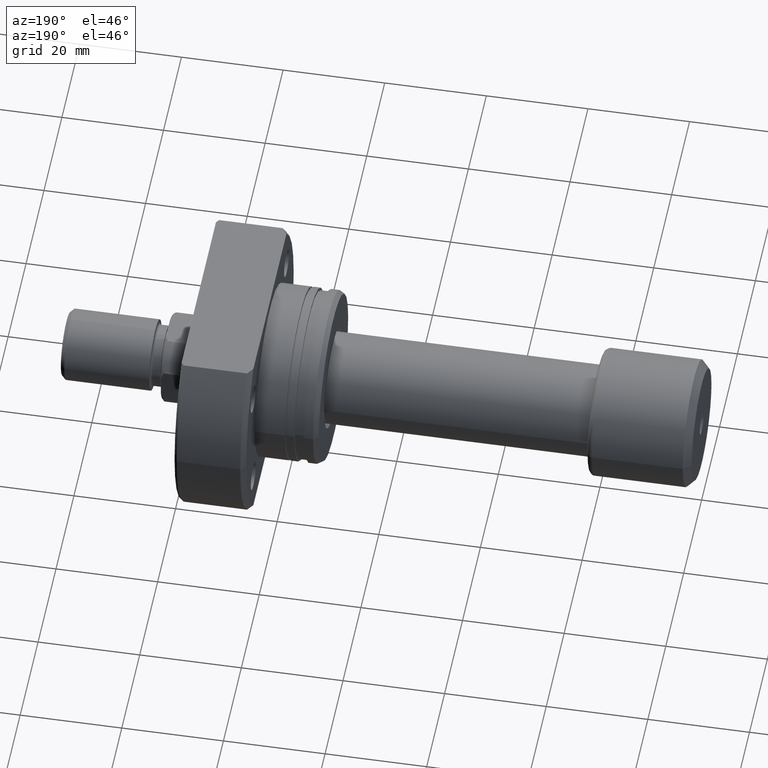
[diagram: clean part render]
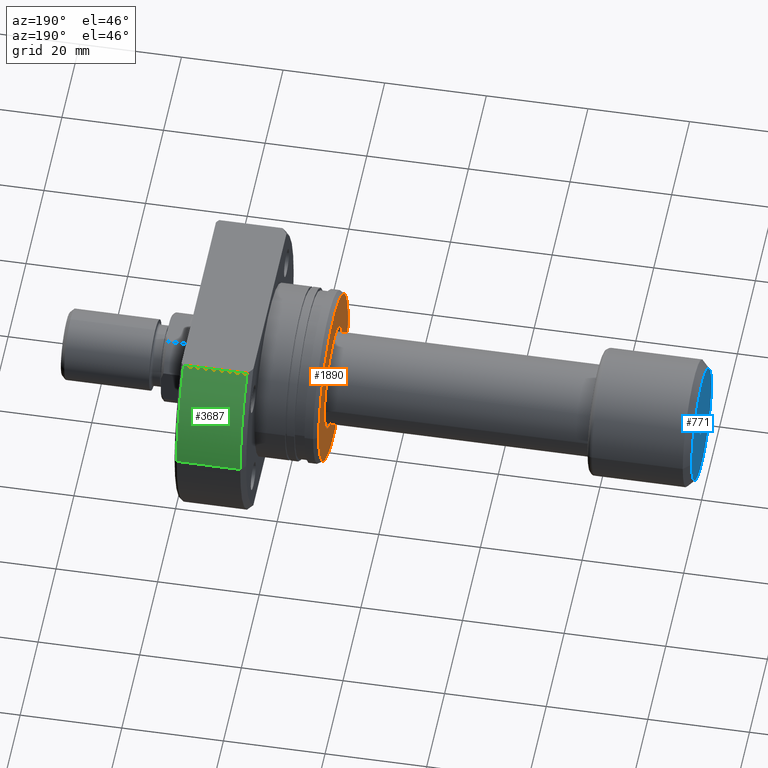
[diagram: same view with three faces highlighted in distinct colors, each labeled with its STEP entity id]
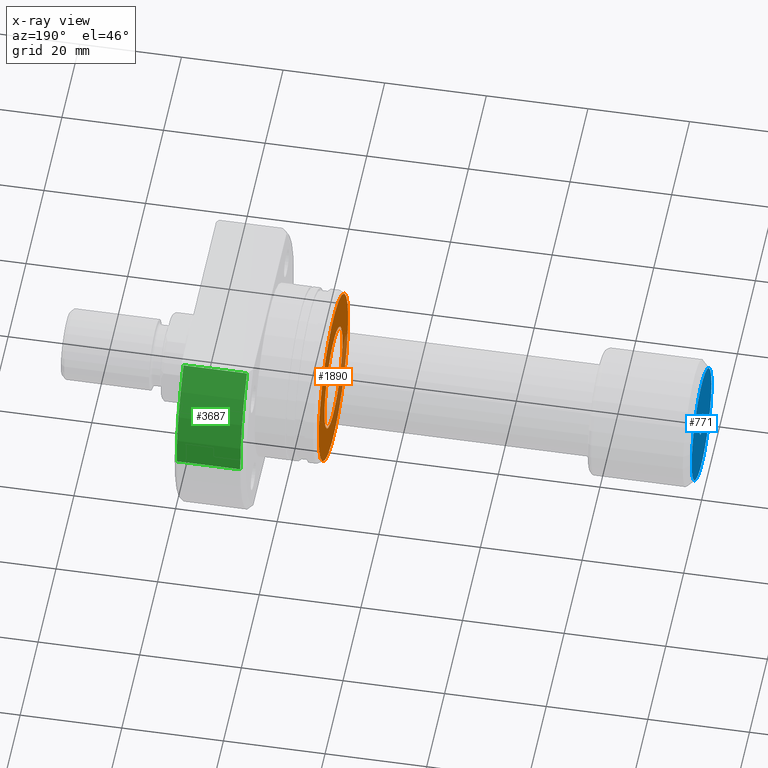
[diagram: x-ray of the same camera — body ghosted, the three highlighted faces saturated]
A machine part, auxiliary view with three faces highlighted in distinct colors.
The next image is the same camera in x-ray (body ghosted, the three faces saturated) — at least one of them is partly hidden behind the body in this view.
Their STEP definitions:

[orange] entity #1890 — the highlighted planar face has unit normal (1, 0, 0).
#91 = AXIS2_PLACEMENT_3D ( 'NONE', #1599, #1359, #1649 ) ;
#279 = ORIENTED_EDGE ( 'NONE', *, *, #3292, .T. ) ;
#406 = DIRECTION ( 'NONE',  ( 1.000000000000000000, 9.242617352055502386E-18, -0.000000000000000000 ) ) ;
#553 = AXIS2_PLACEMENT_3D ( 'NONE', #1214, #2606, #2342 ) ;
#630 = CIRCLE ( 'NONE', #91, 10.00000000000029310 ) ;
#642 = VERTEX_POINT ( 'NONE', #2217 ) ;
#844 = CARTESIAN_POINT ( 'NONE',  ( 9.297031376334609942E-16, -9.999999999999717559, 0.000000000000000000 ) ) ;
#917 = FACE_OUTER_BOUND ( 'NONE', #1764, .T. ) ;
#934 = CIRCLE ( 'NONE', #1112, 10.00000000000029310 ) ;
#995 = VERTEX_POINT ( 'NONE', #844 ) ;
#996 = DIRECTION ( 'NONE',  ( -9.242617352055507008E-18, 1.000000000000000000, 0.000000000000000000 ) ) ;
#1112 = AXIS2_PLACEMENT_3D ( 'NONE', #2087, #406, #996 ) ;
#1214 = CARTESIAN_POINT ( 'NONE',  ( 9.297031376334383144E-16, 8.592890352151261741E-33, 0.000000000000000000 ) ) ;
#1359 = DIRECTION ( 'NONE',  ( 1.000000000000000000, 9.242617352055502386E-18, -0.000000000000000000 ) ) ;
#1488 = PLANE ( 'NONE',  #553 ) ;
#1517 = CARTESIAN_POINT ( 'NONE',  ( 3.469446951953614189E-15, 4.814824860968089633E-32, 0.000000000000000000 ) ) ;
#1599 = CARTESIAN_POINT ( 'NONE',  ( 9.297031376334609942E-16, 7.380088410503559366E-29, 0.000000000000000000 ) ) ;
#1614 = VERTEX_POINT ( 'NONE', #2133 ) ;
#1649 = DIRECTION ( 'NONE',  ( -9.242617352055507008E-18, 1.000000000000000000, 0.000000000000000000 ) ) ;
#1764 = EDGE_LOOP ( 'NONE', ( #3189, #2201 ) ) ;
#1811 = EDGE_CURVE ( 'NONE', #1614, #642, #2525, .T. ) ;
#1871 = EDGE_LOOP ( 'NONE', ( #279, #2169 ) ) ;
#1890 = ADVANCED_FACE ( 'NONE', ( #2643, #917 ), #1488, .F. ) ;
#1982 = AXIS2_PLACEMENT_3D ( 'NONE', #1517, #2996, #2438 ) ;
#2000 = EDGE_CURVE ( 'NONE', #642, #1614, #2399, .T. ) ;
#2087 = CARTESIAN_POINT ( 'NONE',  ( 9.297031376334609942E-16, 7.380088410503559366E-29, 0.000000000000000000 ) ) ;
#2133 = CARTESIAN_POINT ( 'NONE',  ( 3.317658684584896851E-15, 16.42264973081037027, 0.000000000000000000 ) ) ;
#2169 = ORIENTED_EDGE ( 'NONE', *, *, #3137, .T. ) ;
#2201 = ORIENTED_EDGE ( 'NONE', *, *, #2000, .F. ) ;
#2217 = CARTESIAN_POINT ( 'NONE',  ( 3.621235219322331921E-15, -16.42264973081037027, 2.046547050593003144E-15 ) ) ;
#2342 = DIRECTION ( 'NONE',  ( -9.242617352055502386E-18, 1.000000000000000000, 0.000000000000000000 ) ) ;
#2399 = CIRCLE ( 'NONE', #2697, 16.42264973081037027 ) ;
#2438 = DIRECTION ( 'NONE',  ( -9.242617352055494682E-18, 1.000000000000000000, 0.000000000000000000 ) ) ;
#2525 = CIRCLE ( 'NONE', #1982, 16.42264973081037027 ) ;
#2606 = DIRECTION ( 'NONE',  ( 1.000000000000000000, 9.242617352055502386E-18, -0.000000000000000000 ) ) ;
#2633 = DIRECTION ( 'NONE',  ( 1.000000000000000000, 9.242617352055502386E-18, -0.000000000000000000 ) ) ;
#2643 = FACE_BOUND ( 'NONE', #1871, .T. ) ;
#2697 = AXIS2_PLACEMENT_3D ( 'NONE', #3439, #2633, #3397 ) ;
#2747 = VERTEX_POINT ( 'NONE', #3119 ) ;
#2996 = DIRECTION ( 'NONE',  ( 1.000000000000000000, 9.242617352055502386E-18, -0.000000000000000000 ) ) ;
#3119 = CARTESIAN_POINT ( 'NONE',  ( 9.297031376334609942E-16, 10.00000000000029310, 1.224646799147388952E-15 ) ) ;
#3137 = EDGE_CURVE ( 'NONE', #2747, #995, #934, .T. ) ;
#3189 = ORIENTED_EDGE ( 'NONE', *, *, #1811, .F. ) ;
#3292 = EDGE_CURVE ( 'NONE', #995, #2747, #630, .T. ) ;
#3397 = DIRECTION ( 'NONE',  ( -9.242617352055494682E-18, 1.000000000000000000, 0.000000000000000000 ) ) ;
#3439 = CARTESIAN_POINT ( 'NONE',  ( 3.469446951953614189E-15, 4.814824860968089633E-32, 0.000000000000000000 ) ) ;

[blue] entity #771 — the highlighted planar face has unit normal (-1, -0, 0).
#83 = CIRCLE ( 'NONE', #3056, 2.075000000000007283 ) ;
#101 = DIRECTION ( 'NONE',  ( 1.069542322069066263E-17, -1.000000000000000000, 0.000000000000000000 ) ) ;
#162 = EDGE_CURVE ( 'NONE', #889, #1020, #3453, .T. ) ;
#238 = EDGE_LOOP ( 'NONE', ( #2064, #3351 ) ) ;
#360 = DIRECTION ( 'NONE',  ( 1.000000000000000000, 1.069542322069065801E-17, 0.000000000000000000 ) ) ;
#456 = FACE_BOUND ( 'NONE', #238, .T. ) ;
#547 = ORIENTED_EDGE ( 'NONE', *, *, #3520, .T. ) ;
#661 = DIRECTION ( 'NONE',  ( -1.000000000000000000, -1.069542322069065801E-17, -0.000000000000000000 ) ) ;
#771 = ADVANCED_FACE ( 'NONE', ( #456, #1928 ), #2432, .T. ) ;
#797 = CARTESIAN_POINT ( 'NONE',  ( 6.147309118172456842E-16, 6.574807268726511244E-33, 0.000000000000000000 ) ) ;
#815 = ORIENTED_EDGE ( 'NONE', *, *, #2364, .T. ) ;
#889 = VERTEX_POINT ( 'NONE', #1321 ) ;
#952 = CARTESIAN_POINT ( 'NONE',  ( 1.229461823634491368E-15, 1.314961453745302249E-32, 0.000000000000000000 ) ) ;
#1020 = VERTEX_POINT ( 'NONE', #2051 ) ;
#1024 = DIRECTION ( 'NONE',  ( 1.069542322069065801E-17, -1.000000000000000000, 0.000000000000000000 ) ) ;
#1321 = CARTESIAN_POINT ( 'NONE',  ( 6.147309118172456842E-16, 2.541142108230766946E-16, -2.075000000000007283 ) ) ;
#1504 = DIRECTION ( 'NONE',  ( 1.069542322069066263E-17, -1.000000000000000000, 0.000000000000000000 ) ) ;
#1528 = DIRECTION ( 'NONE',  ( 1.069542322069065647E-17, -1.000000000000000000, 0.000000000000000000 ) ) ;
#1638 = AXIS2_PLACEMENT_3D ( 'NONE', #952, #661, #1528 ) ;
#1669 = DIRECTION ( 'NONE',  ( 1.069542322069065647E-17, -1.000000000000000000, 0.000000000000000000 ) ) ;
#1721 = VERTEX_POINT ( 'NONE', #2238 ) ;
#1794 = AXIS2_PLACEMENT_3D ( 'NONE', #797, #1894, #1024 ) ;
#1824 = CARTESIAN_POINT ( 'NONE',  ( 6.147309118172456842E-16, 0.000000000000000000, 0.000000000000000000 ) ) ;
#1894 = DIRECTION ( 'NONE',  ( -1.000000000000000000, -1.069542322069065801E-17, 0.000000000000000000 ) ) ;
#1928 = FACE_OUTER_BOUND ( 'NONE', #2919, .T. ) ;
#2051 = CARTESIAN_POINT ( 'NONE',  ( 6.147309118172456842E-16, 0.000000000000000000, 2.075000000000007283 ) ) ;
#2064 = ORIENTED_EDGE ( 'NONE', *, *, #2616, .T. ) ;
#2172 = AXIS2_PLACEMENT_3D ( 'NONE', #2490, #2553, #1669 ) ;
#2238 = CARTESIAN_POINT ( 'NONE',  ( 1.347111479062088602E-15, -11.00000000000000178, 1.438959988998140160E-15 ) ) ;
#2364 = EDGE_CURVE ( 'NONE', #1721, #3075, #3535, .T. ) ;
#2420 = CARTESIAN_POINT ( 'NONE',  ( 1.111812168206894135E-15, 11.00000000000000178, 0.000000000000000000 ) ) ;
#2432 = PLANE ( 'NONE',  #1794 ) ;
#2490 = CARTESIAN_POINT ( 'NONE',  ( 1.229461823634491368E-15, 1.314961453745302249E-32, 0.000000000000000000 ) ) ;
#2553 = DIRECTION ( 'NONE',  ( -1.000000000000000000, -1.069542322069065801E-17, -0.000000000000000000 ) ) ;
#2616 = EDGE_CURVE ( 'NONE', #1020, #889, #83, .T. ) ;
#2659 = DIRECTION ( 'NONE',  ( 1.000000000000000000, 1.069542322069065801E-17, 0.000000000000000000 ) ) ;
#2712 = CIRCLE ( 'NONE', #1638, 11.00000000000000178 ) ;
#2791 = AXIS2_PLACEMENT_3D ( 'NONE', #2961, #360, #1504 ) ;
#2919 = EDGE_LOOP ( 'NONE', ( #547, #815 ) ) ;
#2961 = CARTESIAN_POINT ( 'NONE',  ( 6.147309118172456842E-16, 0.000000000000000000, 0.000000000000000000 ) ) ;
#3056 = AXIS2_PLACEMENT_3D ( 'NONE', #1824, #2659, #101 ) ;
#3075 = VERTEX_POINT ( 'NONE', #2420 ) ;
#3351 = ORIENTED_EDGE ( 'NONE', *, *, #162, .T. ) ;
#3453 = CIRCLE ( 'NONE', #2791, 2.075000000000007283 ) ;
#3520 = EDGE_CURVE ( 'NONE', #3075, #1721, #2712, .T. ) ;
#3535 = CIRCLE ( 'NONE', #2172, 11.00000000000000178 ) ;

[green] entity #3687 — the highlighted cylindrical surface (partial cylindrical patch) has radius 27.5 mm, axis along (1, 0, 0).
#6 = ORIENTED_EDGE ( 'NONE', *, *, #287, .T. ) ;
#9 = CIRCLE ( 'NONE', #2152, 27.49999999999991473 ) ;
#45 = LINE ( 'NONE', #2703, #3346 ) ;
#59 = EDGE_CURVE ( 'NONE', #1322, #783, #171, .T. ) ;
#62 = CARTESIAN_POINT ( 'NONE',  ( 13.49999999999999112, 27.49999999999991473, 0.000000000000000000 ) ) ;
#171 = CIRCLE ( 'NONE', #3332, 27.49999999999991473 ) ;
#201 = VERTEX_POINT ( 'NONE', #62 ) ;
#236 = DIRECTION ( 'NONE',  ( 1.000000000000000000, -2.886466111666351885E-14, -0.000000000000000000 ) ) ;
#287 = EDGE_CURVE ( 'NONE', #201, #2701, #9, .T. ) ;
#326 = DIRECTION ( 'NONE',  ( 0.000000000000000000, 1.000000000000000000, 0.000000000000000000 ) ) ;
#436 = CARTESIAN_POINT ( 'NONE',  ( 26.00000000000007461, 19.88089535207092950, 19.00000000000000355 ) ) ;
#471 = CARTESIAN_POINT ( 'NONE',  ( 26.00000000000008882, 27.49999999999991473, 0.000000000000000000 ) ) ;
#529 = ORIENTED_EDGE ( 'NONE', *, *, #59, .F. ) ;
#783 = VERTEX_POINT ( 'NONE', #436 ) ;
#1006 = CARTESIAN_POINT ( 'NONE',  ( 26.50000000000000711, 2.449293598294708880E-16, 0.000000000000000000 ) ) ;
#1038 = DIRECTION ( 'NONE',  ( 1.000000000000000000, 9.242617352055502386E-18, -0.000000000000000000 ) ) ;
#1059 = DIRECTION ( 'NONE',  ( 0.000000000000000000, 1.000000000000000000, 0.000000000000000000 ) ) ;
#1100 = VECTOR ( 'NONE', #236, 1000.000000000000000 ) ;
#1225 = CARTESIAN_POINT ( 'NONE',  ( 13.49999999999999112, 1.247753342527491952E-16, 0.000000000000000000 ) ) ;
#1322 = VERTEX_POINT ( 'NONE', #471 ) ;
#1450 = LINE ( 'NONE', #3624, #1100 ) ;
#1602 = ORIENTED_EDGE ( 'NONE', *, *, #2015, .T. ) ;
#1724 = ORIENTED_EDGE ( 'NONE', *, *, #1957, .F. ) ;
#1957 = EDGE_CURVE ( 'NONE', #201, #1322, #45, .T. ) ;
#2015 = EDGE_CURVE ( 'NONE', #2701, #783, #1450, .T. ) ;
#2020 = CARTESIAN_POINT ( 'NONE',  ( 26.00000000000008882, 2.403080511534438786E-16, 0.000000000000000000 ) ) ;
#2152 = AXIS2_PLACEMENT_3D ( 'NONE', #1225, #2354, #3494 ) ;
#2354 = DIRECTION ( 'NONE',  ( 1.000000000000000000, 9.242617352055502386E-18, -0.000000000000000000 ) ) ;
#2595 = AXIS2_PLACEMENT_3D ( 'NONE', #1006, #1038, #1059 ) ;
#2701 = VERTEX_POINT ( 'NONE', #2842 ) ;
#2703 = CARTESIAN_POINT ( 'NONE',  ( 26.50000000000000711, 27.49999999999991473, 0.000000000000000000 ) ) ;
#2842 = CARTESIAN_POINT ( 'NONE',  ( 13.49999999999998757, 19.88089535207129188, 19.00000000000000355 ) ) ;
#2908 = DIRECTION ( 'NONE',  ( 1.000000000000000000, 9.242617352055502386E-18, -0.000000000000000000 ) ) ;
#2980 = FACE_OUTER_BOUND ( 'NONE', #3042, .T. ) ;
#3042 = EDGE_LOOP ( 'NONE', ( #1724, #6, #1602, #529 ) ) ;
#3155 = DIRECTION ( 'NONE',  ( 1.000000000000000000, 9.242617352055502386E-18, -0.000000000000000000 ) ) ;
#3332 = AXIS2_PLACEMENT_3D ( 'NONE', #2020, #3155, #326 ) ;
#3346 = VECTOR ( 'NONE', #2908, 1000.000000000000000 ) ;
#3494 = DIRECTION ( 'NONE',  ( 0.000000000000000000, 1.000000000000000000, 0.000000000000000000 ) ) ;
#3582 = CYLINDRICAL_SURFACE ( 'NONE', #2595, 27.49999999999991473 ) ;
#3624 = CARTESIAN_POINT ( 'NONE',  ( -2.151057110211240797E-13, 19.88089535207167913, 19.00000000000000355 ) ) ;
#3687 = ADVANCED_FACE ( 'NONE', ( #2980 ), #3582, .T. ) ;